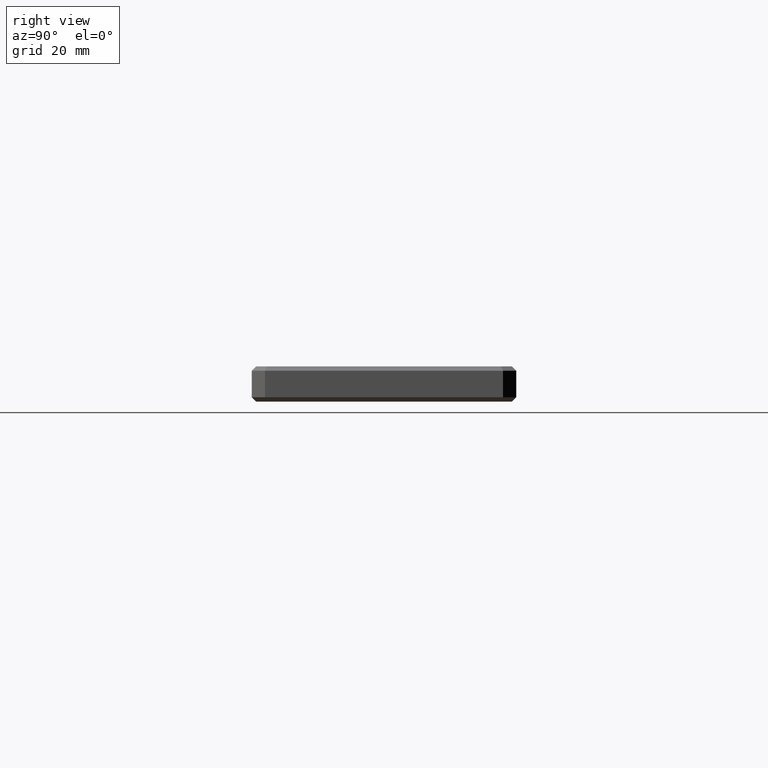
[diagram: clean part render]
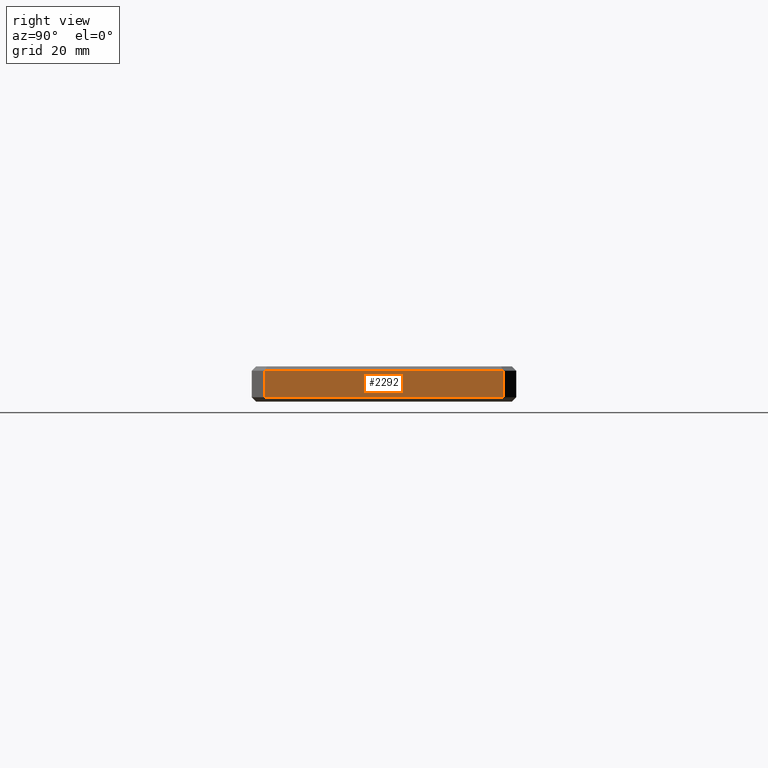
[diagram: same view with one face highlighted and labeled with its STEP entity id]
A machine part, right view. The second image highlights one B-rep face of the part: STEP entity #2292.
In plain terms, the highlighted planar face has unit normal (1, 0, -0).
Its self-contained STEP definition (entity closure, byte-faithful):
#332 = VERTEX_POINT ( 'NONE', #1773 ) ;
#526 = DIRECTION ( 'NONE',  ( 1.000000000000000000, 0.0000000000000000000, -0.0000000000000000000 ) ) ;
#554 = LINE ( 'NONE', #1597, #870 ) ;
#787 = EDGE_CURVE ( 'NONE', #1755, #332, #3057, .T. ) ;
#791 = EDGE_CURVE ( 'NONE', #1060, #1755, #3364, .T. ) ;
#811 = CARTESIAN_POINT ( 'NONE',  ( 124.5000000000000000, 30.00000000000000000, -8.000000000000000000 ) ) ;
#870 = VECTOR ( 'NONE', #1303, 1000.000000000000000 ) ;
#1034 = LINE ( 'NONE', #2353, #3030 ) ;
#1060 = VERTEX_POINT ( 'NONE', #2781 ) ;
#1121 = DIRECTION ( 'NONE',  ( 0.0000000000000000000, 1.000000000000000000, 0.0000000000000000000 ) ) ;
#1303 = DIRECTION ( 'NONE',  ( 0.0000000000000000000, 0.0000000000000000000, 1.000000000000000000 ) ) ;
#1358 = CARTESIAN_POINT ( 'NONE',  ( 124.5000000000000000, -26.99999999999998224, -6.999999999999999112 ) ) ;
#1414 = ORIENTED_EDGE ( 'NONE', *, *, #1665, .T. ) ;
#1431 = ORIENTED_EDGE ( 'NONE', *, *, #791, .T. ) ;
#1492 = VECTOR ( 'NONE', #1121, 1000.000000000000000 ) ;
#1597 = CARTESIAN_POINT ( 'NONE',  ( 124.5000000000000000, 27.00000000000001066, -8.000000000000000000 ) ) ;
#1623 = ORIENTED_EDGE ( 'NONE', *, *, #2925, .T. ) ;
#1639 = DIRECTION ( 'NONE',  ( -0.0000000000000000000, 0.0000000000000000000, -1.000000000000000000 ) ) ;
#1665 = EDGE_CURVE ( 'NONE', #2384, #1060, #1034, .T. ) ;
#1755 = VERTEX_POINT ( 'NONE', #1358 ) ;
#1773 = CARTESIAN_POINT ( 'NONE',  ( 124.5000000000000000, 27.00000000000001066, -7.000000000000006217 ) ) ;
#1935 = ORIENTED_EDGE ( 'NONE', *, *, #787, .T. ) ;
#1978 = CARTESIAN_POINT ( 'NONE',  ( 124.5000000000000000, -26.99999999999998224, -8.000000000000000000 ) ) ;
#2242 = CARTESIAN_POINT ( 'NONE',  ( 124.5000000000000000, 27.00000000000001066, -6.999999999999999112 ) ) ;
#2292 = ADVANCED_FACE ( 'NONE', ( #2478 ), #3548, .T. ) ;
#2353 = CARTESIAN_POINT ( 'NONE',  ( 124.5000000000000000, 30.00000000000000000, -1.000000000000000888 ) ) ;
#2373 = DIRECTION ( 'NONE',  ( 0.0000000000000000000, -1.000000000000000000, 0.0000000000000000000 ) ) ;
#2384 = VERTEX_POINT ( 'NONE', #2833 ) ;
#2478 = FACE_OUTER_BOUND ( 'NONE', #3303, .T. ) ;
#2781 = CARTESIAN_POINT ( 'NONE',  ( 124.5000000000000000, -26.99999999999998224, -1.000000000000000888 ) ) ;
#2833 = CARTESIAN_POINT ( 'NONE',  ( 124.5000000000000000, 27.00000000000001066, -0.9999999999999947820 ) ) ;
#2863 = AXIS2_PLACEMENT_3D ( 'NONE', #811, #526, #1639 ) ;
#2925 = EDGE_CURVE ( 'NONE', #332, #2384, #554, .T. ) ;
#3030 = VECTOR ( 'NONE', #2373, 1000.000000000000000 ) ;
#3057 = LINE ( 'NONE', #2242, #1492 ) ;
#3095 = DIRECTION ( 'NONE',  ( 0.0000000000000000000, 0.0000000000000000000, -1.000000000000000000 ) ) ;
#3303 = EDGE_LOOP ( 'NONE', ( #1623, #1414, #1431, #1935 ) ) ;
#3364 = LINE ( 'NONE', #1978, #3374 ) ;
#3374 = VECTOR ( 'NONE', #3095, 1000.000000000000000 ) ;
#3548 = PLANE ( 'NONE',  #2863 ) ;